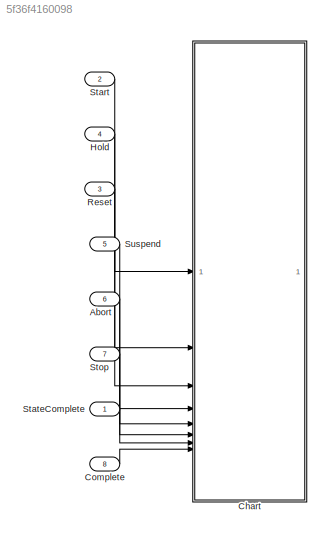
MODEL slx_5f36f4160098
KIND model
CONFIG AbsTol = auto
CONFIG EnableMultiTasking = off
CONFIG FixedStep = auto
CONFIG MaxStep = auto
CONFIG MinStep = auto
CONFIG RelTol = 1e-3
CONFIG SampleTimeConstraint = Unconstrained
CONFIG SolverName = ode3
CONFIG StartTime = 0.0
CONFIG StopTime = Inf
BLOCK [Inport] Abort
  OutDataTypeStr = boolean
  Port = 6
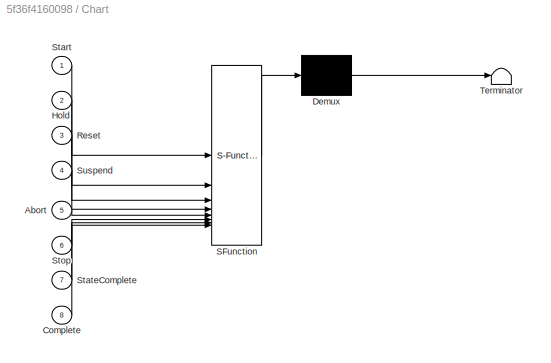
BLOCK [SubSystem] Chart
  ErrorFcn = Stateflow.Translate.translate
  PermitHierarchicalResolution = ExplicitOnly
  SFBlockType = Chart
  TreatAsAtomicUnit = on
BLOCK [Demux] Chart/ Demux 
  Outputs = 1
BLOCK [S-Function] Chart/ SFunction 
  EnableBusSupport = on
  FunctionName = sf_sfun
  PortCounts = [8 1]
  SFcnIsStateOwnerBlock = off
  SFunctionDeploymentMode = off
  Tag = Stateflow S-Function 3
BLOCK [Terminator] Chart/ Terminator 
BLOCK [Inport] Chart/Abort
  Port = 5
BLOCK [Inport] Chart/Complete
  Port = 8
BLOCK [Inport] Chart/Hold
  Port = 2
BLOCK [Inport] Chart/Reset
  Port = 3
BLOCK [Inport] Chart/Start
BLOCK [Inport] Chart/StateComplete
  Port = 7
BLOCK [Inport] Chart/Stop
  Port = 6
BLOCK [Inport] Chart/Suspend
  Port = 4
BLOCK [Inport] Complete
  OutDataTypeStr = boolean
  Port = 8
BLOCK [Inport] Hold
  OutDataTypeStr = boolean
  Port = 4
BLOCK [Inport] Reset
  OutDataTypeStr = boolean
  Port = 3
BLOCK [Inport] Start
  OutDataTypeStr = boolean
  Port = 2
BLOCK [Inport] StateComplete
  OutDataTypeStr = boolean
BLOCK [Inport] Stop
  OutDataTypeStr = boolean
  Port = 7
BLOCK [Inport] Suspend
  OutDataTypeStr = boolean
  Port = 5
LINE Abort:1 -> Chart:5
LINE Complete:1 -> Chart:8
LINE Hold:1 -> Chart:2
LINE Reset:1 -> Chart:3
LINE Start:1 -> Chart:1
LINE StateComplete:1 -> Chart:7
LINE Stop:1 -> Chart:6
LINE Suspend:1 -> Chart:4
CHART Chart states=19 transitions=23
  STATE_LABEL 'Abortable'
  STATE_LABEL 'Stoppable\n'
  STATE_LABEL 'UnHolding'
  STATE_LABEL 'Held'
  STATE_LABEL 'Holding'
  STATE_LABEL 'Starting'
  STATE_LABEL 'Execute'
  STATE_LABEL 'Completing'
  STATE_LABEL 'Idle'
  STATE_LABEL 'Complete'
  STATE_LABEL 'UnSuspending'
  STATE_LABEL 'Suspended'
  STATE_LABEL 'Suspending'
  STATE_LABEL 'Resetting'
  STATE_LABEL '[Start == true]'
  STATE_LABEL '[StateComplete == true]'
  STATE_LABEL '[StateComplete == true]'
  STATE_LABEL '[Hold == true]'
  STATE_LABEL '[StateComplete == true]'
  STATE_LABEL '[Start == true]'
  STATE_LABEL '[StateComplete == true]'
  STATE_LABEL '[Complete == true]'
  STATE_LABEL '[StateComplete == true]'
  STATE_LABEL '[Suspend == true]'
  STATE_LABEL '[StateComplete == true]'
  STATE_LABEL '[Reset == true]'
  STATE_LABEL '[Start == true]'
  STATE_LABEL '[StateComplete == true]'
  STATE_LABEL 'Stopped'
  STATE_LABEL 'Stopping'
  STATE_LABEL 'Clearing'
  STATE_LABEL '[Reset == true]'
  STATE_LABEL '[Stop == true]'
  STATE_LABEL '[StateComplete == true]'
  STATE_LABEL '[StateComplete == true]'
  STATE_LABEL 'Stoppable\n'
  STATE_LABEL 'UnHolding'
  STATE_LABEL 'Held'
  STATE_LABEL 'Holding'
  STATE_LABEL 'Starting'
CHART  states=0 transitions=0
